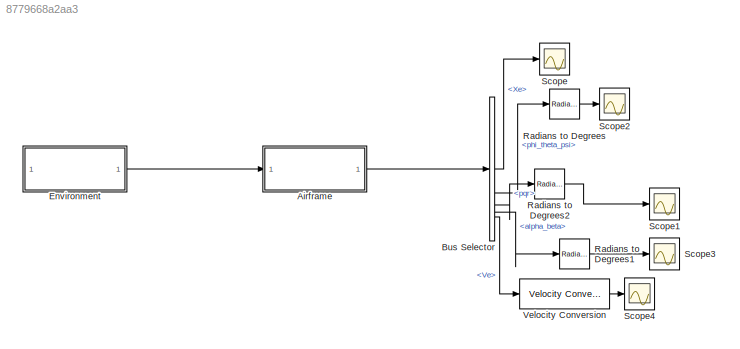
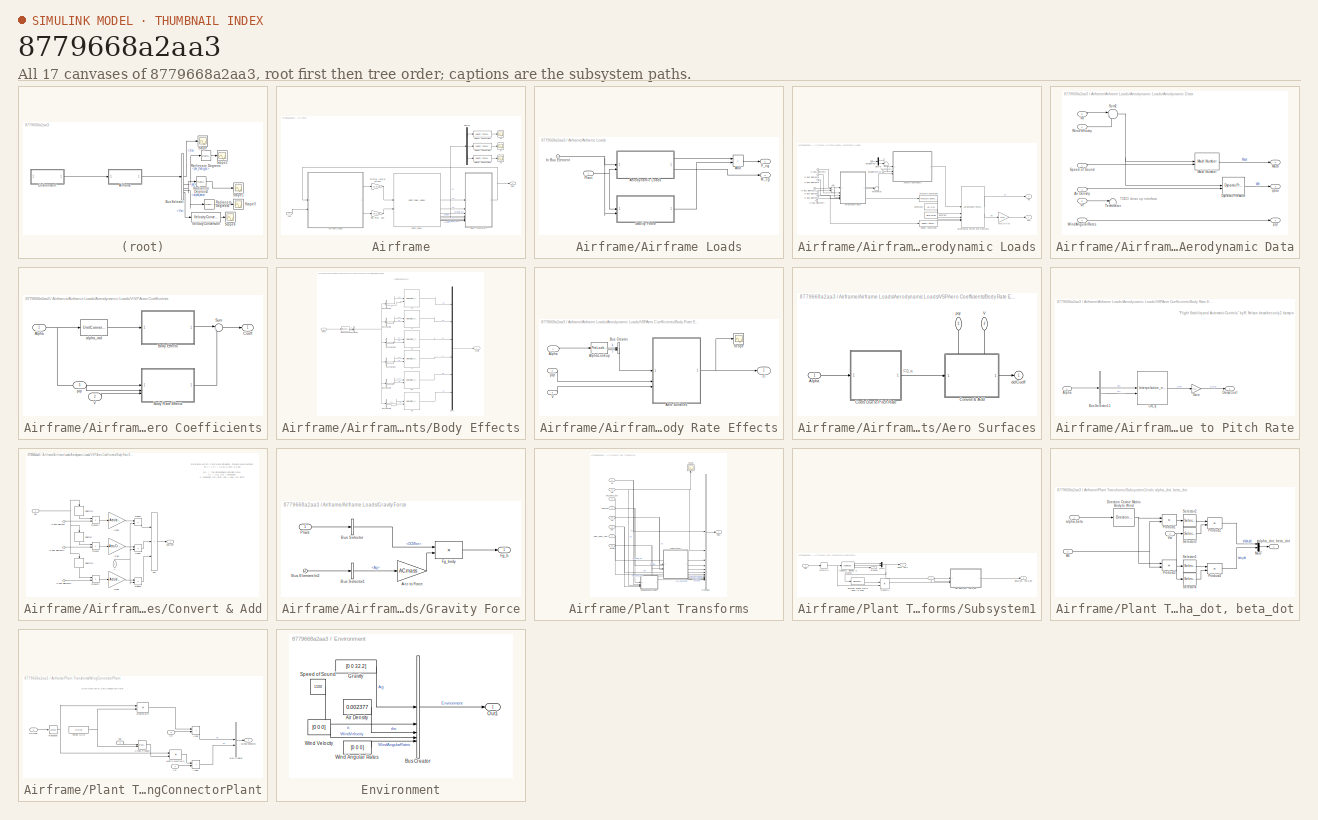
[diagram: thumbnail index - all 17 canvases of the model, root first then tree order]
MODEL slx_8779668a2aa3
KIND model
CONFIG AbsTol = auto
CONFIG EnableMultiTasking = off
CONFIG FixedStep = auto
CONFIG MaxStep = auto
CONFIG MinStep = auto
CONFIG RelTol = 1e-3
CONFIG SampleTimeConstraint = Unconstrained
CONFIG SolverName = VariableStepAuto
CONFIG StartTime = 0.0
CONFIG StopTime = 10
BLOCK [SubSystem] Airframe
BLOCK [Reference] Airframe/6DOF (Euler)  REF=shared6dof/6DOF (Euler Angles)
  LibrarySourceBlock = aerolib6dof2/6DOF (Quaternion)
  SourceBlock = shared6dof/6DOF (Euler Angles)
  SourceType = 6DOF EoM (Body Axis)
BLOCK [SubSystem] Airframe/Airframe Loads
BLOCK [Sum] Airframe/Airframe Loads/Add
  IconShape = rectangular
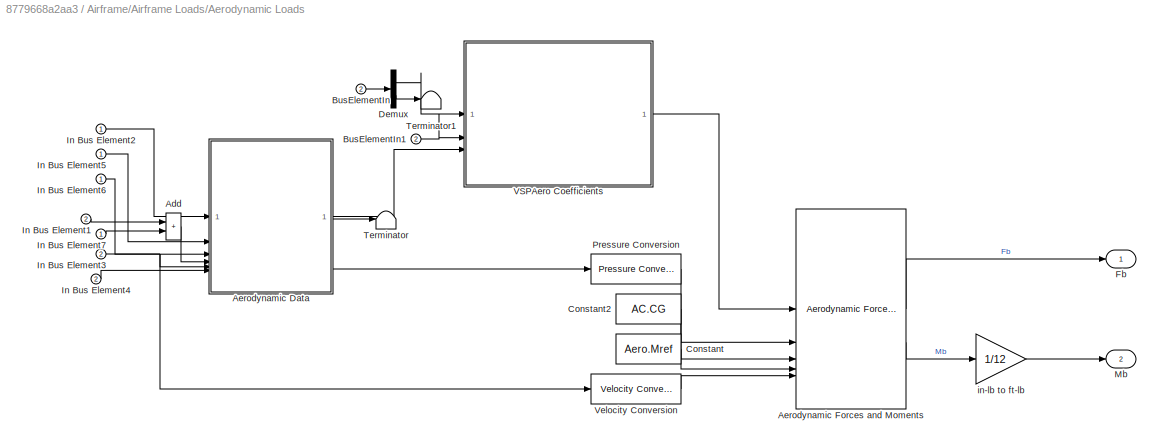
BLOCK [SubSystem] Airframe/Airframe Loads/Aerodynamic Loads
BLOCK [Sum] Airframe/Airframe Loads/Aerodynamic Loads/Add
  IconShape = rectangular
BLOCK [SubSystem] Airframe/Airframe Loads/Aerodynamic Loads/Aerodynamic Data
BLOCK [Inport] Airframe/Airframe Loads/Aerodynamic Loads/Aerodynamic Data/Air Density
  Port = 2
BLOCK [Reference] Airframe/Airframe Loads/Aerodynamic Loads/Aerodynamic Data/Dynamic Pressure  REF=aerolibasang/Dynamic Pressure
  SourceBlock = aerolibasang/Dynamic Pressure
  SourceType = Dynamic Pressure
BLOCK [Outport] Airframe/Airframe Loads/Aerodynamic Loads/Aerodynamic Data/Mach
  Port = 2
  VectorParamsAs1DForOutWhenUnconnected = off
BLOCK [Reference] Airframe/Airframe Loads/Aerodynamic Loads/Aerodynamic Data/Mach Number  REF=aerolibasang/Mach Number
  SourceBlock = aerolibasang/Mach Number
  SourceType = Mach Number
BLOCK [Inport] Airframe/Airframe Loads/Aerodynamic Loads/Aerodynamic Data/Speed of Sound
BLOCK [Sum] Airframe/Airframe Loads/Aerodynamic Loads/Aerodynamic Data/Sum2
  InputSameDT = on
  Inputs = |+-
  OutDataTypeStr = Inherit: Same as first input
  SaturateOnIntegerOverflow = on
BLOCK [Terminator] Airframe/Airframe Loads/Aerodynamic Loads/Aerodynamic Data/Terminator
BLOCK [Inport] Airframe/Airframe Loads/Aerodynamic Loads/Aerodynamic Data/Vb
  Port = 5
  PortDimensions = 3
BLOCK [Inport] Airframe/Airframe Loads/Aerodynamic Loads/Aerodynamic Data/Ve
  Port = 6
  PortDimensions = 3
BLOCK [Inport] Airframe/Airframe Loads/Aerodynamic Loads/Aerodynamic Data/WindAngularRates
  Port = 4
  PortDimensions = 3
BLOCK [Inport] Airframe/Airframe Loads/Aerodynamic Loads/Aerodynamic Data/WindVelocity
  Port = 3
  PortDimensions = 3
BLOCK [Outport] Airframe/Airframe Loads/Aerodynamic Loads/Aerodynamic Data/pqr 
  VectorParamsAs1DForOutWhenUnconnected = off
BLOCK [Outport] Airframe/Airframe Loads/Aerodynamic Loads/Aerodynamic Data/qbar
  Port = 3
  VectorParamsAs1DForOutWhenUnconnected = off
BLOCK [Reference] Airframe/Airframe Loads/Aerodynamic Loads/Aerodynamic Forces and Moments  REF=aerolibadyn/Aerodynamic
Forces and Moments 
  SourceBlock = aerolibadyn/Aerodynamic\nForces and Moments
  SourceType = Aerodynamic Forces and Moments
BLOCK [Inport] Airframe/Airframe Loads/Aerodynamic Loads/BusElementIn
  Port = 2
BLOCK [Inport] Airframe/Airframe Loads/Aerodynamic Loads/BusElementIn1
  Port = 2
BLOCK [Constant] Airframe/Airframe Loads/Aerodynamic Loads/Constant
  Value = Aero.Mref
BLOCK [Constant] Airframe/Airframe Loads/Aerodynamic Loads/Constant2
  Value = AC.CG
BLOCK [Demux] Airframe/Airframe Loads/Aerodynamic Loads/Demux
  Outputs = 2
BLOCK [Outport] Airframe/Airframe Loads/Aerodynamic Loads/Fb
  VectorParamsAs1DForOutWhenUnconnected = off
BLOCK [Inport] Airframe/Airframe Loads/Aerodynamic Loads/In Bus Element1
  Port = 2
BLOCK [Inport] Airframe/Airframe Loads/Aerodynamic Loads/In Bus Element2
BLOCK [Inport] Airframe/Airframe Loads/Aerodynamic Loads/In Bus Element3
  Port = 2
BLOCK [Inport] Airframe/Airframe Loads/Aerodynamic Loads/In Bus Element4
  Port = 2
BLOCK [Inport] Airframe/Airframe Loads/Aerodynamic Loads/In Bus Element5
BLOCK [Inport] Airframe/Airframe Loads/Aerodynamic Loads/In Bus Element6
BLOCK [Inport] Airframe/Airframe Loads/Aerodynamic Loads/In Bus Element7
BLOCK [Outport] Airframe/Airframe Loads/Aerodynamic Loads/Mb
  Port = 2
  VectorParamsAs1DForOutWhenUnconnected = off
BLOCK [Reference] Airframe/Airframe Loads/Aerodynamic Loads/Pressure Conversion  REF=aerolibconvert2/Pressure Conversion
  SourceBlock = aerolibconvert2/Pressure Conversion
  SourceType = Pressure Conversion
BLOCK [Terminator] Airframe/Airframe Loads/Aerodynamic Loads/Terminator
BLOCK [Terminator] Airframe/Airframe Loads/Aerodynamic Loads/Terminator1
BLOCK [SubSystem] Airframe/Airframe Loads/Aerodynamic Loads/VSPAero Coefficients
BLOCK [Inport] Airframe/Airframe Loads/Aerodynamic Loads/VSPAero Coefficients/Alpha
  Unit = rad
BLOCK [SubSystem] Airframe/Airframe Loads/Aerodynamic Loads/VSPAero Coefficients/Body Effects
BLOCK [Inport] Airframe/Airframe Loads/Aerodynamic Loads/VSPAero Coefficients/Body Effects/Alpha
  Unit = deg
BLOCK [PreLookup] Airframe/Airframe Loads/Aerodynamic Loads/VSPAero Coefficients/Body Effects/AlphaLookup
  BeginIndexSearchUsingPreviousIndexResult = on
  BreakpointsData = Aero.alpha_vec
  ExtrapMethod = Linear
  InputPortMap = u0
BLOCK [BusCreator] Airframe/Airframe Loads/Aerodynamic Loads/VSPAero Coefficients/Body Effects/Bus Creator
  DisplayOption = bar
  InheritFromInputs = on
  Inputs = 2
BLOCK [BusSelector] Airframe/Airframe Loads/Aerodynamic Loads/VSPAero Coefficients/Body Effects/Bus Selector10
  OutputSignals = k,f
BLOCK [BusSelector] Airframe/Airframe Loads/Aerodynamic Loads/VSPAero Coefficients/Body Effects/Bus Selector11
  OutputSignals = k,f
BLOCK [BusSelector] Airframe/Airframe Loads/Aerodynamic Loads/VSPAero Coefficients/Body Effects/Bus Selector3
  OutputSignals = k,f
BLOCK [BusSelector] Airframe/Airframe Loads/Aerodynamic Loads/VSPAero Coefficients/Body Effects/Bus Selector5
  OutputSignals = k,f
BLOCK [BusSelector] Airframe/Airframe Loads/Aerodynamic Loads/VSPAero Coefficients/Body Effects/Bus Selector7
  OutputSignals = k,f
BLOCK [BusSelector] Airframe/Airframe Loads/Aerodynamic Loads/VSPAero Coefficients/Body Effects/Bus Selector8
  OutputSignals = k,f
BLOCK [Interpolation_n-D] Airframe/Airframe Loads/Aerodynamic Loads/VSPAero Coefficients/Body Effects/CD
  DiagnosticForOutOfRangeInput = Warning
  InputPortMap = u0,u1
  NumberOfTableDimensions = 1
  RemoveProtectionIndex = on
  SaturateOnIntegerOverflow = on
  Table = Aero.CD
BLOCK [Interpolation_n-D] Airframe/Airframe Loads/Aerodynamic Loads/VSPAero Coefficients/Body Effects/CL
  DiagnosticForOutOfRangeInput = Warning
  ExtrapMethod = Clip
  InputPortMap = u0,u1
  NumberOfTableDimensions = 1
  RemoveProtectionIndex = on
  SaturateOnIntegerOverflow = on
  Table = Aero.CL
BLOCK [Interpolation_n-D] Airframe/Airframe Loads/Aerodynamic Loads/VSPAero Coefficients/Body Effects/Cc
  InputPortMap = u0,u1
  NumberOfTableDimensions = 1
  RemoveProtectionIndex = on
  SaturateOnIntegerOverflow = on
  Table = Aero.Cc
BLOCK [Interpolation_n-D] Airframe/Airframe Loads/Aerodynamic Loads/VSPAero Coefficients/Body Effects/Cl
  InputPortMap = u0,u1
  NumberOfTableDimensions = 1
  RemoveProtectionIndex = on
  SaturateOnIntegerOverflow = on
  Table = Aero.Cl
BLOCK [Interpolation_n-D] Airframe/Airframe Loads/Aerodynamic Loads/VSPAero Coefficients/Body Effects/Cm
  DiagnosticForOutOfRangeInput = Warning
  ExtrapMethod = Clip
  InputPortMap = u0,u1
  NumberOfTableDimensions = 1
  RemoveProtectionIndex = on
  SaturateOnIntegerOverflow = on
  Table = Aero.Cm
BLOCK [Interpolation_n-D] Airframe/Airframe Loads/Aerodynamic Loads/VSPAero Coefficients/Body Effects/Cn
  InputPortMap = u0,u1
  NumberOfTableDimensions = 1
  RemoveProtectionIndex = on
  SaturateOnIntegerOverflow = on
  Table = Aero.Cn
BLOCK [Mux] Airframe/Airframe Loads/Aerodynamic Loads/VSPAero Coefficients/Body Effects/Mux1
  Inputs = 6
BLOCK [Outport] Airframe/Airframe Loads/Aerodynamic Loads/VSPAero Coefficients/Body Effects/coeffs
  VectorParamsAs1DForOutWhenUnconnected = off
BLOCK [SubSystem] Airframe/Airframe Loads/Aerodynamic Loads/VSPAero Coefficients/Body Rate Effects
  Commented = on
BLOCK [SubSystem] Airframe/Airframe Loads/Aerodynamic Loads/VSPAero Coefficients/Body Rate Effects/Aero Surfaces
BLOCK [Inport] Airframe/Airframe Loads/Aerodynamic Loads/VSPAero Coefficients/Body Rate Effects/Aero Surfaces/Alpha
  NameLocation = top
BLOCK [SubSystem] Airframe/Airframe Loads/Aerodynamic Loads/VSPAero Coefficients/Body Rate Effects/Aero Surfaces/Coefs Due to Pitch Rate
BLOCK [Inport] Airframe/Airframe Loads/Aerodynamic Loads/VSPAero Coefficients/Body Rate Effects/Aero Surfaces/Coefs Due to Pitch Rate/Alpha
BLOCK [BusSelector] Airframe/Airframe Loads/Aerodynamic Loads/VSPAero Coefficients/Body Rate Effects/Aero Surfaces/Coefs Due to Pitch Rate/Bus Selector11
  OutputSignals = k,f
BLOCK [Interpolation_n-D] Airframe/Airframe Loads/Aerodynamic Loads/VSPAero Coefficients/Body Rate Effects/Aero Surfaces/Coefs Due to Pitch Rate/Cm_q
  ExtrapMethod = Clip
  InputPortMap = u0,u1
  NumberOfTableDimensions = 1
  RemoveProtectionIndex = on
  SaturateOnIntegerOverflow = on
  Table = Aero.Cm_q
BLOCK [Outport] Airframe/Airframe Loads/Aerodynamic Loads/VSPAero Coefficients/Body Rate Effects/Aero Surfaces/Coefs Due to Pitch Rate/DampCoef
BLOCK [Gain] Airframe/Airframe Loads/Aerodynamic Loads/VSPAero Coefficients/Body Rate Effects/Aero Surfaces/Coefs Due to Pitch Rate/Gain
  Commented = through
  Gain = 0.1
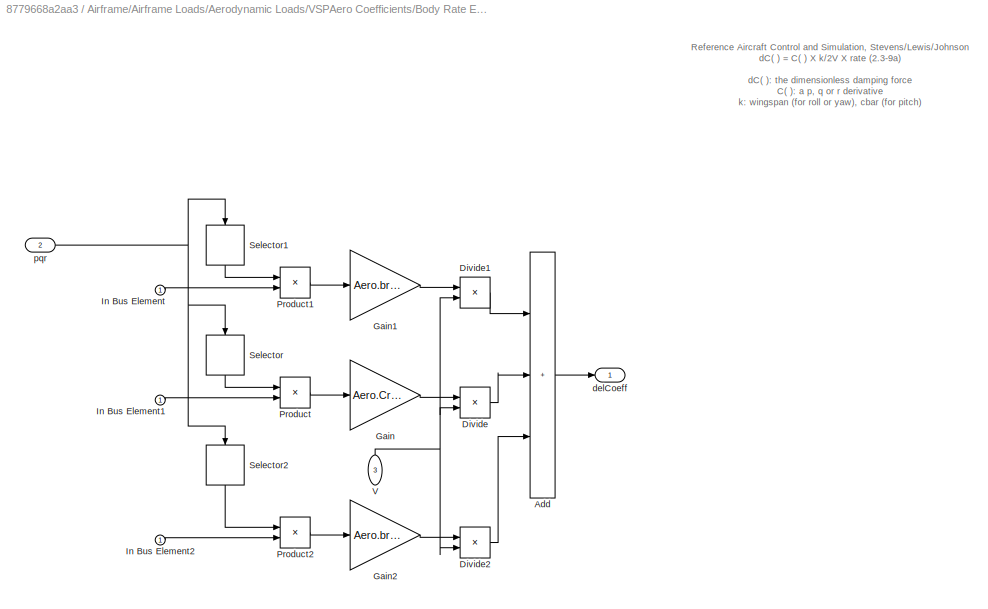
BLOCK [SubSystem] Airframe/Airframe Loads/Aerodynamic Loads/VSPAero Coefficients/Body Rate Effects/Aero Surfaces/Convert & Add
  PortSchema = {"entries":[{"content":{"sides":[{"content":{"connectorIds":["In1"]},"type":"ConnectorPlacement.EquallySpacedRectSide","uuid":"b8013de1-6e73-47c3-a52d-200a37bea422"},{"content":{"connectorIds":["Out1"],"side":"RIGHT"},"type":"ConnectorPlacement.EquallySpacedRectSide","uuid":"fcf5ea14-4050-433a-82d6-0b7656ed6099"},{"content":{"connectorIds":["In2","In3"],"side":"TOP"},"type":"ConnectorPlacement.Equ...<+395ch>
BLOCK [Sum] Airframe/Airframe Loads/Aerodynamic Loads/VSPAero Coefficients/Body Rate Effects/Aero Surfaces/Convert & Add/Add
  IconShape = rectangular
  Inputs = +++
BLOCK [Product] Airframe/Airframe Loads/Aerodynamic Loads/VSPAero Coefficients/Body Rate Effects/Aero Surfaces/Convert & Add/Divide
  Inputs = */
BLOCK [Product] Airframe/Airframe Loads/Aerodynamic Loads/VSPAero Coefficients/Body Rate Effects/Aero Surfaces/Convert & Add/Divide1
  Inputs = */
BLOCK [Product] Airframe/Airframe Loads/Aerodynamic Loads/VSPAero Coefficients/Body Rate Effects/Aero Surfaces/Convert & Add/Divide2
  Inputs = */
BLOCK [Gain] Airframe/Airframe Loads/Aerodynamic Loads/VSPAero Coefficients/Body Rate Effects/Aero Surfaces/Convert & Add/Gain
  Gain = Aero.Cref/2
BLOCK [Gain] Airframe/Airframe Loads/Aerodynamic Loads/VSPAero Coefficients/Body Rate Effects/Aero Surfaces/Convert & Add/Gain1
  Gain = Aero.bref/2
BLOCK [Gain] Airframe/Airframe Loads/Aerodynamic Loads/VSPAero Coefficients/Body Rate Effects/Aero Surfaces/Convert & Add/Gain2
  Gain = Aero.bref/2
BLOCK [Inport] Airframe/Airframe Loads/Aerodynamic Loads/VSPAero Coefficients/Body Rate Effects/Aero Surfaces/Convert & Add/In Bus Element
BLOCK [Inport] Airframe/Airframe Loads/Aerodynamic Loads/VSPAero Coefficients/Body Rate Effects/Aero Surfaces/Convert & Add/In Bus Element1
BLOCK [Inport] Airframe/Airframe Loads/Aerodynamic Loads/VSPAero Coefficients/Body Rate Effects/Aero Surfaces/Convert & Add/In Bus Element2
BLOCK [Product] Airframe/Airframe Loads/Aerodynamic Loads/VSPAero Coefficients/Body Rate Effects/Aero Surfaces/Convert & Add/Product
BLOCK [Product] Airframe/Airframe Loads/Aerodynamic Loads/VSPAero Coefficients/Body Rate Effects/Aero Surfaces/Convert & Add/Product1
BLOCK [Product] Airframe/Airframe Loads/Aerodynamic Loads/VSPAero Coefficients/Body Rate Effects/Aero Surfaces/Convert & Add/Product2
BLOCK [Selector] Airframe/Airframe Loads/Aerodynamic Loads/VSPAero Coefficients/Body Rate Effects/Aero Surfaces/Convert & Add/Selector
  IndexOptions = Index vector (dialog)
  Indices = [ 2]
  InputPortWidth = 3
  NameLocation = left
  OutputSizes = 1
BLOCK [Selector] Airframe/Airframe Loads/Aerodynamic Loads/VSPAero Coefficients/Body Rate Effects/Aero Surfaces/Convert & Add/Selector1
  IndexOptions = Index vector (dialog)
  Indices = [ 1]
  InputPortWidth = 3
  NameLocation = left
  OutputSizes = 1
BLOCK [Selector] Airframe/Airframe Loads/Aerodynamic Loads/VSPAero Coefficients/Body Rate Effects/Aero Surfaces/Convert & Add/Selector2
  IndexOptions = Index vector (dialog)
  Indices = [ 3]
  InputPortWidth = 3
  NameLocation = left
  OutputSizes = 1
BLOCK [Inport] Airframe/Airframe Loads/Aerodynamic Loads/VSPAero Coefficients/Body Rate Effects/Aero Surfaces/Convert & Add/V
  NameLocation = right
  Port = 3
BLOCK [Outport] Airframe/Airframe Loads/Aerodynamic Loads/VSPAero Coefficients/Body Rate Effects/Aero Surfaces/Convert & Add/delCoeff
BLOCK [Inport] Airframe/Airframe Loads/Aerodynamic Loads/VSPAero Coefficients/Body Rate Effects/Aero Surfaces/Convert & Add/pqr
  Port = 2
BLOCK [Inport] Airframe/Airframe Loads/Aerodynamic Loads/VSPAero Coefficients/Body Rate Effects/Aero Surfaces/V
  NameLocation = left
  Port = 3
BLOCK [Outport] Airframe/Airframe Loads/Aerodynamic Loads/VSPAero Coefficients/Body Rate Effects/Aero Surfaces/delCoeff
  VectorParamsAs1DForOutWhenUnconnected = off
BLOCK [Inport] Airframe/Airframe Loads/Aerodynamic Loads/VSPAero Coefficients/Body Rate Effects/Aero Surfaces/pqr
  NameLocation = left
  Port = 2
BLOCK [Inport] Airframe/Airframe Loads/Aerodynamic Loads/VSPAero Coefficients/Body Rate Effects/Alpha
  Unit = deg
BLOCK [PreLookup] Airframe/Airframe Loads/Aerodynamic Loads/VSPAero Coefficients/Body Rate Effects/AlphaLookup
  BeginIndexSearchUsingPreviousIndexResult = on
  BreakpointsData = Aero.alpha_vec
  ExtrapMethod = Linear
  InputPortMap = u0
BLOCK [BusCreator] Airframe/Airframe Loads/Aerodynamic Loads/VSPAero Coefficients/Body Rate Effects/Bus Creator
  DisplayOption = bar
  InheritFromInputs = on
  Inputs = 2
BLOCK [Scope] Airframe/Airframe Loads/Aerodynamic Loads/VSPAero Coefficients/Body Rate Effects/Scope
  Floating = off
  NumInputPorts = 1
  ScopeSpecificationString = Simulink.scopes.TimeScopeBlockCfg('CurrentConfiguration', extmgr.ConfigurationSet(extmgr.Configuration('Core','General UI',true),extmgr.Configuration('Core','Source UI',true),extmgr.Configuration('Sources','WiredSimulink',true,'DataLoggingVariableName','ScopeData4'),extmgr.Configuration('Visuals','Time Domain',true,'SerializedDisplays',{struct('MinYLimReal','-0.12913','MaxYLimReal','0.10005','YLab...<+1517ch>
BLOCK [Inport] Airframe/Airframe Loads/Aerodynamic Loads/VSPAero Coefficients/Body Rate Effects/V
  Port = 3
BLOCK [Outport] Airframe/Airframe Loads/Aerodynamic Loads/VSPAero Coefficients/Body Rate Effects/cl
  VectorParamsAs1DForOutWhenUnconnected = off
BLOCK [Inport] Airframe/Airframe Loads/Aerodynamic Loads/VSPAero Coefficients/Body Rate Effects/pqr
  Port = 2
BLOCK [Outport] Airframe/Airframe Loads/Aerodynamic Loads/VSPAero Coefficients/Coeff
  VectorParamsAs1DForOutWhenUnconnected = off
BLOCK [Sum] Airframe/Airframe Loads/Aerodynamic Loads/VSPAero Coefficients/Sum
  Inputs = |++
BLOCK [Inport] Airframe/Airframe Loads/Aerodynamic Loads/VSPAero Coefficients/V
  Port = 2
BLOCK [UnitConversion] Airframe/Airframe Loads/Aerodynamic Loads/VSPAero Coefficients/alpha_rad
BLOCK [Inport] Airframe/Airframe Loads/Aerodynamic Loads/VSPAero Coefficients/pqr
  Port = 3
BLOCK [Reference] Airframe/Airframe Loads/Aerodynamic Loads/Velocity Conversion  REF=aerolibconvert2/Velocity Conversion
  SourceBlock = aerolibconvert2/Velocity Conversion
  SourceType = Velocity Conversion
BLOCK [Gain] Airframe/Airframe Loads/Aerodynamic Loads/in-lb to ft-lb
  Gain = 1/12
BLOCK [Outport] Airframe/Airframe Loads/F_cg
BLOCK [SubSystem] Airframe/Airframe Loads/Gravity Force
BLOCK [Gain] Airframe/Airframe Loads/Gravity Force/Acc to Force
  Gain = AC.mass
  OutDataTypeStr = Inherit: Same as input
  ParamDataTypeStr = Inherit: Same as input
BLOCK [Inport] Airframe/Airframe Loads/Gravity Force/Bus Element In2
  Port = 2
BLOCK [BusSelector] Airframe/Airframe Loads/Gravity Force/Bus Selector
  OutputSignals = DCMbe
BLOCK [BusSelector] Airframe/Airframe Loads/Gravity Force/Bus Selector1
  OutputSignals = Ag
BLOCK [Outport] Airframe/Airframe Loads/Gravity Force/Fg_b
BLOCK [Product] Airframe/Airframe Loads/Gravity Force/Fg_body
  Multiplication = Matrix(*)
BLOCK [Inport] Airframe/Airframe Loads/Gravity Force/Plant
BLOCK [Inport] Airframe/Airframe Loads/In Bus Element
  Port = 2
BLOCK [Outport] Airframe/Airframe Loads/M_cg
  Port = 2
BLOCK [Inport] Airframe/Airframe Loads/Plant
BLOCK [Demux] Airframe/Demux
  Outputs = 3
BLOCK [Inport] Airframe/In1
BLOCK [Outport] Airframe/Plant
BLOCK [SubSystem] Airframe/Plant Transforms
BLOCK [Inport] Airframe/Plant Transforms/Accels
  Port = 8
BLOCK [Inport] Airframe/Plant Transforms/DCMbe
  Port = 4
BLOCK [BusCreator] Airframe/Plant Transforms/ModelBus
  DisplayOption = bar
  InheritFromInputs = on
  Inputs = 12
BLOCK [Outport] Airframe/Plant Transforms/Plant
BLOCK [Scope] Airframe/Plant Transforms/Scope
  Floating = off
  NameLocation = right
  NumInputPorts = 1
  ScopeSpecificationString = Simulink.scopes.TimeScopeBlockCfg('CurrentConfiguration', extmgr.ConfigurationSet(extmgr.Configuration('Core','General UI',true),extmgr.Configuration('Core','Source UI',true),extmgr.Configuration('Sources','WiredSimulink',true,'DataLoggingVariableName','ScopeData1'),extmgr.Configuration('Visuals','Time Domain',true,'SerializedDisplays',{struct('MinYLimReal','-89.84831','MaxYLimReal','806.16016','Y...<+1476ch>
BLOCK [SubSystem] Airframe/Plant Transforms/Subsystem1
BLOCK [Inport] Airframe/Plant Transforms/Subsystem1/Ab
  Port = 2
BLOCK [Outport] Airframe/Plant Transforms/Subsystem1/Airspeed
  Port = 3
BLOCK [Reference] Airframe/Plant Transforms/Subsystem1/Direction Cosine Matrix Body to Wind  REF=aerolibtransform2/Direction Cosine Matrix
Body to Wind
  SourceBlock = aerolibtransform2/Direction Cosine Matrix\nBody to Wind
  SourceType = DCM Body to Wind
BLOCK [Reference] Airframe/Plant Transforms/Subsystem1/Incidence, Sideslip, & Airspeed  REF=aerolibasang/Incidence, Sideslip,
& Airspeed
  SourceBlock = aerolibasang/Incidence, Sideslip,\n& Airspeed
  SourceType = Incidence,Sideslip,&Airspeed
BLOCK [Memory] Airframe/Plant Transforms/Subsystem1/Memory4
  InitialCondition = initVb
BLOCK [Mux] Airframe/Plant Transforms/Subsystem1/Mux4
  DisplayOption = bar
  Inputs = 2
BLOCK [Product] Airframe/Plant Transforms/Subsystem1/Product1
  InputSameDT = on
  Multiplication = Matrix(*)
  OutDataTypeStr = Inherit: Same as first input
  SaturateOnIntegerOverflow = on
BLOCK [Inport] Airframe/Plant Transforms/Subsystem1/Vb
BLOCK [Outport] Airframe/Plant Transforms/Subsystem1/alpha, beta
  Unit = rad
  VectorParamsAs1DForOutWhenUnconnected = off
BLOCK [Outport] Airframe/Plant Transforms/Subsystem1/alpha_dot, beta_dot
  Port = 2
  Unit = rad/s
  VectorParamsAs1DForOutWhenUnconnected = off
BLOCK [SubSystem] Airframe/Plant Transforms/Subsystem1/calc alpha_dot, beta_dot
BLOCK [Inport] Airframe/Plant Transforms/Subsystem1/calc alpha_dot, beta_dot/Ab
  Port = 2
BLOCK [Reference] Airframe/Plant Transforms/Subsystem1/calc alpha_dot, beta_dot/Direction Cosine Matrix Body to Wind  REF=aerolibtransform2/Direction Cosine Matrix
Body to Wind
  SourceBlock = aerolibtransform2/Direction Cosine Matrix\nBody to Wind
  SourceType = DCM Body to Wind
BLOCK [Mux] Airframe/Plant Transforms/Subsystem1/calc alpha_dot, beta_dot/Mux7
  DisplayOption = bar
  Inputs = 2
BLOCK [Product] Airframe/Plant Transforms/Subsystem1/calc alpha_dot, beta_dot/Product1
  InputSameDT = on
  Multiplication = Matrix(*)
  OutDataTypeStr = Inherit: Same as first input
  SaturateOnIntegerOverflow = on
BLOCK [Product] Airframe/Plant Transforms/Subsystem1/calc alpha_dot, beta_dot/Product2
  InputSameDT = on
  Inputs = */
  OutDataTypeStr = Inherit: Same as first input
  SaturateOnIntegerOverflow = on
BLOCK [Product] Airframe/Plant Transforms/Subsystem1/calc alpha_dot, beta_dot/Product3
  InputSameDT = on
  Multiplication = Matrix(*)
  OutDataTypeStr = Inherit: Same as first input
  SaturateOnIntegerOverflow = on
BLOCK [Product] Airframe/Plant Transforms/Subsystem1/calc alpha_dot, beta_dot/Product4
  InputSameDT = on
  Inputs = */
  OutDataTypeStr = Inherit: Same as first input
  SaturateOnIntegerOverflow = on
BLOCK [Selector] Airframe/Plant Transforms/Subsystem1/calc alpha_dot, beta_dot/Selector1
  IndexMode = Zero-based
  IndexOptions = Index vector (dialog)
  Indices = 1
  InputPortWidth = 3
  OutputSizes = 1
BLOCK [Selector] Airframe/Plant Transforms/Subsystem1/calc alpha_dot, beta_dot/Selector2
  IndexMode = Zero-based
  IndexOptions = Index vector (dialog)
  Indices = 2
  InputPortWidth = 3
  OutputSizes = 1
BLOCK [Selector] Airframe/Plant Transforms/Subsystem1/calc alpha_dot, beta_dot/Selector3
  IndexMode = Zero-based
  IndexOptions = Index vector (dialog)
  Indices = 0
  InputPortWidth = 3
  OutputSizes = 1
BLOCK [Selector] Airframe/Plant Transforms/Subsystem1/calc alpha_dot, beta_dot/Selector4
  IndexMode = Zero-based
  IndexOptions = Index vector (dialog)
  Indices = 0
  InputPortWidth = 3
  OutputSizes = 1
BLOCK [Inport] Airframe/Plant Transforms/Subsystem1/calc alpha_dot, beta_dot/Vw
  Port = 3
BLOCK [Inport] Airframe/Plant Transforms/Subsystem1/calc alpha_dot, beta_dot/alpha,beta
BLOCK [Outport] Airframe/Plant Transforms/Subsystem1/calc alpha_dot, beta_dot/alpha_dot, beta_dot
  VectorParamsAs1DForOutWhenUnconnected = off
BLOCK [Inport] Airframe/Plant Transforms/Vb
  Port = 5
BLOCK [Inport] Airframe/Plant Transforms/Ve
BLOCK [SubSystem] Airframe/Plant Transforms/WingConnectorPlant
BLOCK [Sum] Airframe/Plant Transforms/WingConnectorPlant/Add1
  IconShape = rectangular
BLOCK [Sum] Airframe/Plant Transforms/WingConnectorPlant/Add2
  IconShape = rectangular
BLOCK [Product] Airframe/Plant Transforms/WingConnectorPlant/Body2Earth
  Multiplication = Matrix(*)
BLOCK [BusCreator] Airframe/Plant Transforms/WingConnectorPlant/Bus Creator
  DisplayOption = bar
  InheritFromInputs = on
  Inputs = 2
BLOCK [Reference] Airframe/Plant Transforms/WingConnectorPlant/Cross Product  REF=vrlib/Utilities/Cross Product
  SourceBlock = vrlib/Utilities/Cross Product
  SourceType = Cross Product
BLOCK [Inport] Airframe/Plant Transforms/WingConnectorPlant/DCMbe
BLOCK [Product] Airframe/Plant Transforms/WingConnectorPlant/Matrix Multiply1
  Multiplication = Matrix(*)
BLOCK [Constant] Airframe/Plant Transforms/WingConnectorPlant/Tether DCG
  Value = [0 0 0]
BLOCK [Math] Airframe/Plant Transforms/WingConnectorPlant/Transpose
  Operator = transpose
BLOCK [Inport] Airframe/Plant Transforms/WingConnectorPlant/Ve
  Port = 2
BLOCK [Outport] Airframe/Plant Transforms/WingConnectorPlant/WingConnector
BLOCK [Inport] Airframe/Plant Transforms/WingConnectorPlant/Xe
  Port = 3
BLOCK [Inport] Airframe/Plant Transforms/WingConnectorPlant/pqr
  Port = 4
BLOCK [Inport] Airframe/Plant Transforms/Xe
  Port = 2
BLOCK [Inport] Airframe/Plant Transforms/pdot_qdot_rdot
  Port = 7
BLOCK [Inport] Airframe/Plant Transforms/phi_theta_psi
  Port = 3
BLOCK [Inport] Airframe/Plant Transforms/pqr
  Port = 6
BLOCK [Gain] Airframe/Roll, Pitch, Yaw
  Gain = [0 1 0]
BLOCK [Gain] Airframe/Throttle, Lateral, Vertical
  Gain = [1 0 1]
BLOCK [Reference] Airframe/Velocity Conversion  REF=aerolibconvert2/Velocity Conversion
  SourceBlock = aerolibconvert2/Velocity Conversion
  SourceType = Velocity Conversion
BLOCK [Reference] Airframe/Velocity Conversion1  REF=aerolibconvert2/Velocity Conversion
  SourceBlock = aerolibconvert2/Velocity Conversion
  SourceType = Velocity Conversion
BLOCK [Reference] Airframe/Velocity Conversion2  REF=aerolibconvert2/Velocity Conversion
  SourceBlock = aerolibconvert2/Velocity Conversion
  SourceType = Velocity Conversion
BLOCK [Scope] Airframe/Vx
  Floating = off
  NumInputPorts = 1
  ScopeSpecificationString = Simulink.scopes.TimeScopeBlockCfg('CurrentConfiguration', extmgr.ConfigurationSet(extmgr.Configuration('Core','General UI',true),extmgr.Configuration('Core','Source UI',true),extmgr.Configuration('Sources','WiredSimulink',true,'DataLoggingVariableName','ScopeData1'),extmgr.Configuration('Visuals','Time Domain',true,'SerializedDisplays',{struct('MinYLimReal','65.83997','MaxYLimReal','95.33531','YLa...<+1502ch>
BLOCK [Scope] Airframe/Vy
  Floating = off
  NumInputPorts = 1
  ScopeSpecificationString = Simulink.scopes.TimeScopeBlockCfg('CurrentConfiguration', extmgr.ConfigurationSet(extmgr.Configuration('Core','General UI',true),extmgr.Configuration('Core','Source UI',true),extmgr.Configuration('Sources','WiredSimulink',true,'DataLoggingVariableName','ScopeData2'),extmgr.Configuration('Visuals','Time Domain',true,'SerializedDisplays',{struct('MinYLimReal','-1.00000','MaxYLimReal','1.00000','YLab...<+1496ch>
BLOCK [Scope] Airframe/Vz
  Floating = off
  NumInputPorts = 1
  ScopeSpecificationString = Simulink.scopes.TimeScopeBlockCfg('CurrentConfiguration', extmgr.ConfigurationSet(extmgr.Configuration('Core','General UI',true),extmgr.Configuration('Core','Source UI',true),extmgr.Configuration('Sources','WiredSimulink',true,'DataLoggingVariableName','ScopeData3'),extmgr.Configuration('Visuals','Time Domain',true,'SerializedDisplays',{struct('MinYLimReal','-40.40382','MaxYLimReal','23.85273','YL...<+1502ch>
BLOCK [BusSelector] Bus Selector
  OutputSignals = Xe,phi_theta_psi,pqr,alpha_beta,Ve
BLOCK [SubSystem] Environment
BLOCK [Constant] Environment/Air Density
  Value = 0.002377
BLOCK [BusCreator] Environment/Bus Creator
  DisplayOption = bar
  InheritFromInputs = on
  Inputs = 5
BLOCK [Constant] Environment/Gravity
  Value = [0 0 32.2]
BLOCK [Outport] Environment/Out1
BLOCK [Constant] Environment/Speed of Sound
  Value = 1100
BLOCK [Constant] Environment/Wind Angular Rates
  Value = [0 0 0]
BLOCK [Constant] Environment/Wind Velocity
  Value = [0 0 0]
BLOCK [Reference] Radians to Degrees  REF=simulink_extras/Transformations/Radians
to Degrees
  SourceBlock = simulink_extras/Transformations/Radians\nto Degrees
  SourceType = RadiansToDegrees
BLOCK [Reference] Radians to Degrees1  REF=simulink_extras/Transformations/Radians
to Degrees
  SourceBlock = simulink_extras/Transformations/Radians\nto Degrees
  SourceType = RadiansToDegrees
BLOCK [Reference] Radians to Degrees2  REF=simulink_extras/Transformations/Radians
to Degrees
  NameLocation = right
  SourceBlock = simulink_extras/Transformations/Radians\nto Degrees
  SourceType = RadiansToDegrees
BLOCK [Scope] Scope
  Floating = off
  NumInputPorts = 1
  ScopeSpecificationString = Simulink.scopes.TimeScopeBlockCfg('CurrentConfiguration', extmgr.ConfigurationSet(extmgr.Configuration('Core','General UI',true),extmgr.Configuration('Core','Source UI',true),extmgr.Configuration('Sources','WiredSimulink',true),extmgr.Configuration('Visuals','Time Domain',true,'SerializedDisplays',{struct('MinYLimReal','-128.56792','MaxYLimReal','1143.10212','YLabelReal','','MinYLimMag',' 0.00000'...<+1478ch>
BLOCK [Scope] Scope1
  Floating = off
  NumInputPorts = 1
  ScopeSpecificationString = Simulink.scopes.TimeScopeBlockCfg('CurrentConfiguration', extmgr.ConfigurationSet(extmgr.Configuration('Core','General UI',true),extmgr.Configuration('Core','Source UI',true),extmgr.Configuration('Sources','WiredSimulink',true,'DataLoggingVariableName','ScopeData4'),extmgr.Configuration('Visuals','Time Domain',true,'SerializedDisplays',{struct('MinYLimReal','-12.26263','MaxYLimReal','3.11966','YLa...<+1574ch>
BLOCK [Scope] Scope2
  Floating = off
  NumInputPorts = 1
  ScopeSpecificationString = Simulink.scopes.TimeScopeBlockCfg('CurrentConfiguration', extmgr.ConfigurationSet(extmgr.Configuration('Core','General UI',true),extmgr.Configuration('Core','Source UI',true),extmgr.Configuration('Sources','WiredSimulink',true,'DataLoggingVariableName','ScopeData5'),extmgr.Configuration('Visuals','Time Domain',true,'SerializedDisplays',{struct('MinYLimReal','-50.20059','MaxYLimReal','5.57784','YLa...<+1544ch>
BLOCK [Scope] Scope3
  Floating = off
  NumInputPorts = 1
  ScopeSpecificationString = Simulink.scopes.TimeScopeBlockCfg('CurrentConfiguration', extmgr.ConfigurationSet(extmgr.Configuration('Core','General UI',true),extmgr.Configuration('Core','Source UI',true),extmgr.Configuration('Sources','WiredSimulink',true,'DataLoggingVariableName','ScopeData6'),extmgr.Configuration('Visuals','Time Domain',true,'SerializedDisplays',{struct('MinYLimReal','-27.78751','MaxYLimReal','15.45351','YL...<+1526ch>
BLOCK [Scope] Scope4
  Floating = off
  NumInputPorts = 1
  ScopeSpecificationString = Simulink.scopes.TimeScopeBlockCfg('CurrentConfiguration', extmgr.ConfigurationSet(extmgr.Configuration('Core','General UI',true),extmgr.Configuration('Core','Source UI',true),extmgr.Configuration('Sources','WiredSimulink',true,'DataLoggingVariableName','ScopeData7'),extmgr.Configuration('Visuals','Time Domain',true,'SerializedDisplays',{struct('MinYLimReal','-12.93247','MaxYLimReal','94.91922','YL...<+1550ch>
BLOCK [Reference] Velocity Conversion  REF=aerolibconvert2/Velocity Conversion
  SourceBlock = aerolibconvert2/Velocity Conversion
  SourceType = Velocity Conversion
ANNOTATION Airframe/Airframe Loads/Aerodynamic Loads/Aerodynamic Data: TODO: clean up interface
ANNOTATION Airframe/Airframe Loads/Aerodynamic Loads/VSPAero Coefficients/Body Effects: coefficients in wind axes
ANNOTATION Airframe/Airframe Loads/Aerodynamic Loads/VSPAero Coefficients/Body Rate Effects/Aero Surfaces: C()_q
ANNOTATION Airframe/Airframe Loads/Aerodynamic Loads/VSPAero Coefficients/Body Rate Effects/Aero Surfaces/Coefs Due to Pitch Rate: "Flight Stability and Automatic Controls," by R. Nelson describes only 2 damping coefficients due to pitch rate. (Pg. 123): Z force, pitching moment
ANNOTATION Airframe/Airframe Loads/Aerodynamic Loads/VSPAero Coefficients/Body Rate Effects/Aero Surfaces/Convert & Add: Reference Aircraft Control and Simulation, Stevens/Lewis/Johnson dC( ) = C( ) X k/2V X rate (2.3-9a) dC( ): the dimensionless damping force C( ): a p, q or r derivative k: wingspan (for roll or yaw), cbar (for pitch)
ANNOTATION Airframe/Plant Transforms/WingConnectorPlant: Give Position of Line Connection Point
LINE Airframe/6DOF (Euler):1 -> Airframe/Plant Transforms:1
LINE Airframe/6DOF (Euler):2 -> Airframe/Plant Transforms:2
LINE Airframe/6DOF (Euler):3 -> Airframe/Plant Transforms:3
LINE Airframe/6DOF (Euler):4 -> Airframe/Plant Transforms:4
NET Airframe/6DOF (Euler):5 -> Airframe/Demux:1, Airframe/Plant Transforms:5
LINE Airframe/6DOF (Euler):6 -> Airframe/Plant Transforms:6
LINE Airframe/6DOF (Euler):7 -> Airframe/Plant Transforms:7
LINE Airframe/6DOF (Euler):8 -> Airframe/Plant Transforms:8
LINE Airframe/Airframe Loads/Add:1 -> Airframe/Airframe Loads/F_cg:1
LINE Airframe/Airframe Loads/Aerodynamic Loads/Add:1 -> Airframe/Airframe Loads/Aerodynamic Loads/Aerodynamic Data:4
LINE Airframe/Airframe Loads/Aerodynamic Loads/Aerodynamic Data/Air Density:1 -> Airframe/Airframe Loads/Aerodynamic Loads/Aerodynamic Data/Dynamic Pressure:2
LINE Airframe/Airframe Loads/Aerodynamic Loads/Aerodynamic Data/Dynamic Pressure:1 -> Airframe/Airframe Loads/Aerodynamic Loads/Aerodynamic Data/qbar:1
LINE Airframe/Airframe Loads/Aerodynamic Loads/Aerodynamic Data/Mach Number:1 -> Airframe/Airframe Loads/Aerodynamic Loads/Aerodynamic Data/Mach:1
LINE Airframe/Airframe Loads/Aerodynamic Loads/Aerodynamic Data/Speed of Sound:1 -> Airframe/Airframe Loads/Aerodynamic Loads/Aerodynamic Data/Mach Number:2
NET Airframe/Airframe Loads/Aerodynamic Loads/Aerodynamic Data/Sum2:1 -> Airframe/Airframe Loads/Aerodynamic Loads/Aerodynamic Data/Dynamic Pressure:1, Airframe/Airframe Loads/Aerodynamic Loads/Aerodynamic Data/Mach Number:1
LINE Airframe/Airframe Loads/Aerodynamic Loads/Aerodynamic Data/Vb:1 -> Airframe/Airframe Loads/Aerodynamic Loads/Aerodynamic Data/Sum2:1
LINE Airframe/Airframe Loads/Aerodynamic Loads/Aerodynamic Data/Ve:1 -> Airframe/Airframe Loads/Aerodynamic Loads/Aerodynamic Data/Terminator:1
LINE Airframe/Airframe Loads/Aerodynamic Loads/Aerodynamic Data/WindAngularRates:1 -> Airframe/Airframe Loads/Aerodynamic Loads/Aerodynamic Data/pqr :1
LINE Airframe/Airframe Loads/Aerodynamic Loads/Aerodynamic Data/WindVelocity:1 -> Airframe/Airframe Loads/Aerodynamic Loads/Aerodynamic Data/Sum2:2
LINE Airframe/Airframe Loads/Aerodynamic Loads/Aerodynamic Data:1 -> Airframe/Airframe Loads/Aerodynamic Loads/VSPAero Coefficients:3
LINE Airframe/Airframe Loads/Aerodynamic Loads/Aerodynamic Data:2 -> Airframe/Airframe Loads/Aerodynamic Loads/Terminator:1
LINE Airframe/Airframe Loads/Aerodynamic Loads/Aerodynamic Data:3 -> Airframe/Airframe Loads/Aerodynamic Loads/Pressure Conversion:1
LINE Airframe/Airframe Loads/Aerodynamic Loads/Aerodynamic Forces and Moments:1 -> Airframe/Airframe Loads/Aerodynamic Loads/Fb:1
LINE Airframe/Airframe Loads/Aerodynamic Loads/Aerodynamic Forces and Moments:2 -> Airframe/Airframe Loads/Aerodynamic Loads/in-lb to ft-lb:1
LINE Airframe/Airframe Loads/Aerodynamic Loads/BusElementIn1:1 -> Airframe/Airframe Loads/Aerodynamic Loads/VSPAero Coefficients:2
LINE Airframe/Airframe Loads/Aerodynamic Loads/BusElementIn:1 -> Airframe/Airframe Loads/Aerodynamic Loads/Demux:1
LINE Airframe/Airframe Loads/Aerodynamic Loads/Constant2:1 -> Airframe/Airframe Loads/Aerodynamic Loads/Aerodynamic Forces and Moments:3
LINE Airframe/Airframe Loads/Aerodynamic Loads/Constant:1 -> Airframe/Airframe Loads/Aerodynamic Loads/Aerodynamic Forces and Moments:4
LINE Airframe/Airframe Loads/Aerodynamic Loads/Demux:1 -> Airframe/Airframe Loads/Aerodynamic Loads/VSPAero Coefficients:1
LINE Airframe/Airframe Loads/Aerodynamic Loads/Demux:2 -> Airframe/Airframe Loads/Aerodynamic Loads/Terminator1:1
LINE Airframe/Airframe Loads/Aerodynamic Loads/In Bus Element1:1 -> Airframe/Airframe Loads/Aerodynamic Loads/Add:1
LINE Airframe/Airframe Loads/Aerodynamic Loads/In Bus Element2:1 -> Airframe/Airframe Loads/Aerodynamic Loads/Aerodynamic Data:1
NET Airframe/Airframe Loads/Aerodynamic Loads/In Bus Element3:1 -> Airframe/Airframe Loads/Aerodynamic Loads/Aerodynamic Data:5, Airframe/Airframe Loads/Aerodynamic Loads/Velocity Conversion:1
LINE Airframe/Airframe Loads/Aerodynamic Loads/In Bus Element4:1 -> Airframe/Airframe Loads/Aerodynamic Loads/Aerodynamic Data:6
LINE Airframe/Airframe Loads/Aerodynamic Loads/In Bus Element5:1 -> Airframe/Airframe Loads/Aerodynamic Loads/Aerodynamic Data:2
LINE Airframe/Airframe Loads/Aerodynamic Loads/In Bus Element6:1 -> Airframe/Airframe Loads/Aerodynamic Loads/Aerodynamic Data:3
LINE Airframe/Airframe Loads/Aerodynamic Loads/In Bus Element7:1 -> Airframe/Airframe Loads/Aerodynamic Loads/Add:2
LINE Airframe/Airframe Loads/Aerodynamic Loads/Pressure Conversion:1 -> Airframe/Airframe Loads/Aerodynamic Loads/Aerodynamic Forces and Moments:2
NET Airframe/Airframe Loads/Aerodynamic Loads/VSPAero Coefficients/Alpha:1 -> Airframe/Airframe Loads/Aerodynamic Loads/VSPAero Coefficients/Body Rate Effects:1, Airframe/Airframe Loads/Aerodynamic Loads/VSPAero Coefficients/alpha_rad:1
LINE Airframe/Airframe Loads/Aerodynamic Loads/VSPAero Coefficients/Body Effects/Alpha:1 -> Airframe/Airframe Loads/Aerodynamic Loads/VSPAero Coefficients/Body Effects/AlphaLookup:1
LINE Airframe/Airframe Loads/Aerodynamic Loads/VSPAero Coefficients/Body Effects/AlphaLookup:1 -> Airframe/Airframe Loads/Aerodynamic Loads/VSPAero Coefficients/Body Effects/Bus Creator:1
LINE Airframe/Airframe Loads/Aerodynamic Loads/VSPAero Coefficients/Body Effects/AlphaLookup:2 -> Airframe/Airframe Loads/Aerodynamic Loads/VSPAero Coefficients/Body Effects/Bus Creator:2
NET Airframe/Airframe Loads/Aerodynamic Loads/VSPAero Coefficients/Body Effects/Bus Creator:1 -> Airframe/Airframe Loads/Aerodynamic Loads/VSPAero Coefficients/Body Effects/Bus Selector10:1, Airframe/Airframe Loads/Aerodynamic Loads/VSPAero Coefficients/Body Effects/Bus Selector11:1, Airframe/Airframe Loads/Aerodynamic Loads/VSPAero Coefficients/Body Effects/Bus Selector3:1, Airframe/Airframe Loads/Aerodynamic Loads/VSPAero Coefficients/Body Effects/Bus Selector5:1, Airframe/Airframe Loads/Aerodynamic Loads/VSPAero Coefficients/Body Effects/Bus Selector7:1, Airframe/Airframe Loads/Aerodynamic Loads/VSPAero Coefficients/Body Effects/Bus Selector8:1
LINE Airframe/Airframe Loads/Aerodynamic Loads/VSPAero Coefficients/Body Effects/Bus Selector10:1 -> Airframe/Airframe Loads/Aerodynamic Loads/VSPAero Coefficients/Body Effects/CL:1
LINE Airframe/Airframe Loads/Aerodynamic Loads/VSPAero Coefficients/Body Effects/Bus Selector10:2 -> Airframe/Airframe Loads/Aerodynamic Loads/VSPAero Coefficients/Body Effects/CL:2
LINE Airframe/Airframe Loads/Aerodynamic Loads/VSPAero Coefficients/Body Effects/Bus Selector11:1 -> Airframe/Airframe Loads/Aerodynamic Loads/VSPAero Coefficients/Body Effects/Cl:1
LINE Airframe/Airframe Loads/Aerodynamic Loads/VSPAero Coefficients/Body Effects/Bus Selector11:2 -> Airframe/Airframe Loads/Aerodynamic Loads/VSPAero Coefficients/Body Effects/Cl:2
LINE Airframe/Airframe Loads/Aerodynamic Loads/VSPAero Coefficients/Body Effects/Bus Selector3:1 -> Airframe/Airframe Loads/Aerodynamic Loads/VSPAero Coefficients/Body Effects/Cm:1
LINE Airframe/Airframe Loads/Aerodynamic Loads/VSPAero Coefficients/Body Effects/Bus Selector3:2 -> Airframe/Airframe Loads/Aerodynamic Loads/VSPAero Coefficients/Body Effects/Cm:2
LINE Airframe/Airframe Loads/Aerodynamic Loads/VSPAero Coefficients/Body Effects/Bus Selector5:1 -> Airframe/Airframe Loads/Aerodynamic Loads/VSPAero Coefficients/Body Effects/Cn:1
LINE Airframe/Airframe Loads/Aerodynamic Loads/VSPAero Coefficients/Body Effects/Bus Selector5:2 -> Airframe/Airframe Loads/Aerodynamic Loads/VSPAero Coefficients/Body Effects/Cn:2
LINE Airframe/Airframe Loads/Aerodynamic Loads/VSPAero Coefficients/Body Effects/Bus Selector7:1 -> Airframe/Airframe Loads/Aerodynamic Loads/VSPAero Coefficients/Body Effects/CD:1
LINE Airframe/Airframe Loads/Aerodynamic Loads/VSPAero Coefficients/Body Effects/Bus Selector7:2 -> Airframe/Airframe Loads/Aerodynamic Loads/VSPAero Coefficients/Body Effects/CD:2
LINE Airframe/Airframe Loads/Aerodynamic Loads/VSPAero Coefficients/Body Effects/Bus Selector8:1 -> Airframe/Airframe Loads/Aerodynamic Loads/VSPAero Coefficients/Body Effects/Cc:1
LINE Airframe/Airframe Loads/Aerodynamic Loads/VSPAero Coefficients/Body Effects/Bus Selector8:2 -> Airframe/Airframe Loads/Aerodynamic Loads/VSPAero Coefficients/Body Effects/Cc:2
LINE Airframe/Airframe Loads/Aerodynamic Loads/VSPAero Coefficients/Body Effects/CD:1 -> Airframe/Airframe Loads/Aerodynamic Loads/VSPAero Coefficients/Body Effects/Mux1:1
LINE Airframe/Airframe Loads/Aerodynamic Loads/VSPAero Coefficients/Body Effects/CL:1 -> Airframe/Airframe Loads/Aerodynamic Loads/VSPAero Coefficients/Body Effects/Mux1:3
LINE Airframe/Airframe Loads/Aerodynamic Loads/VSPAero Coefficients/Body Effects/Cc:1 -> Airframe/Airframe Loads/Aerodynamic Loads/VSPAero Coefficients/Body Effects/Mux1:2
LINE Airframe/Airframe Loads/Aerodynamic Loads/VSPAero Coefficients/Body Effects/Cl:1 -> Airframe/Airframe Loads/Aerodynamic Loads/VSPAero Coefficients/Body Effects/Mux1:4
LINE Airframe/Airframe Loads/Aerodynamic Loads/VSPAero Coefficients/Body Effects/Cm:1 -> Airframe/Airframe Loads/Aerodynamic Loads/VSPAero Coefficients/Body Effects/Mux1:5
LINE Airframe/Airframe Loads/Aerodynamic Loads/VSPAero Coefficients/Body Effects/Cn:1 -> Airframe/Airframe Loads/Aerodynamic Loads/VSPAero Coefficients/Body Effects/Mux1:6
LINE Airframe/Airframe Loads/Aerodynamic Loads/VSPAero Coefficients/Body Effects/Mux1:1 -> Airframe/Airframe Loads/Aerodynamic Loads/VSPAero Coefficients/Body Effects/coeffs:1
LINE Airframe/Airframe Loads/Aerodynamic Loads/VSPAero Coefficients/Body Effects:1 -> Airframe/Airframe Loads/Aerodynamic Loads/VSPAero Coefficients/Sum:1
LINE Airframe/Airframe Loads/Aerodynamic Loads/VSPAero Coefficients/Body Rate Effects/Aero Surfaces/Alpha:1 -> Airframe/Airframe Loads/Aerodynamic Loads/VSPAero Coefficients/Body Rate Effects/Aero Surfaces/Coefs Due to Pitch Rate:1
LINE Airframe/Airframe Loads/Aerodynamic Loads/VSPAero Coefficients/Body Rate Effects/Aero Surfaces/Coefs Due to Pitch Rate/Alpha:1 -> Airframe/Airframe Loads/Aerodynamic Loads/VSPAero Coefficients/Body Rate Effects/Aero Surfaces/Coefs Due to Pitch Rate/Bus Selector11:1
LINE Airframe/Airframe Loads/Aerodynamic Loads/VSPAero Coefficients/Body Rate Effects/Aero Surfaces/Coefs Due to Pitch Rate/Bus Selector11:1 -> Airframe/Airframe Loads/Aerodynamic Loads/VSPAero Coefficients/Body Rate Effects/Aero Surfaces/Coefs Due to Pitch Rate/Cm_q:1
LINE Airframe/Airframe Loads/Aerodynamic Loads/VSPAero Coefficients/Body Rate Effects/Aero Surfaces/Coefs Due to Pitch Rate/Bus Selector11:2 -> Airframe/Airframe Loads/Aerodynamic Loads/VSPAero Coefficients/Body Rate Effects/Aero Surfaces/Coefs Due to Pitch Rate/Cm_q:2
LINE Airframe/Airframe Loads/Aerodynamic Loads/VSPAero Coefficients/Body Rate Effects/Aero Surfaces/Coefs Due to Pitch Rate/Cm_q:1 -> Airframe/Airframe Loads/Aerodynamic Loads/VSPAero Coefficients/Body Rate Effects/Aero Surfaces/Coefs Due to Pitch Rate/Gain:1
LINE Airframe/Airframe Loads/Aerodynamic Loads/VSPAero Coefficients/Body Rate Effects/Aero Surfaces/Coefs Due to Pitch Rate/Gain:1 -> Airframe/Airframe Loads/Aerodynamic Loads/VSPAero Coefficients/Body Rate Effects/Aero Surfaces/Coefs Due to Pitch Rate/DampCoef:1
LINE Airframe/Airframe Loads/Aerodynamic Loads/VSPAero Coefficients/Body Rate Effects/Aero Surfaces/Coefs Due to Pitch Rate:1 -> Airframe/Airframe Loads/Aerodynamic Loads/VSPAero Coefficients/Body Rate Effects/Aero Surfaces/Convert & Add:1
LINE Airframe/Airframe Loads/Aerodynamic Loads/VSPAero Coefficients/Body Rate Effects/Aero Surfaces/Convert & Add/Add:1 -> Airframe/Airframe Loads/Aerodynamic Loads/VSPAero Coefficients/Body Rate Effects/Aero Surfaces/Convert & Add/delCoeff:1
LINE Airframe/Airframe Loads/Aerodynamic Loads/VSPAero Coefficients/Body Rate Effects/Aero Surfaces/Convert & Add/Divide1:1 -> Airframe/Airframe Loads/Aerodynamic Loads/VSPAero Coefficients/Body Rate Effects/Aero Surfaces/Convert & Add/Add:1
LINE Airframe/Airframe Loads/Aerodynamic Loads/VSPAero Coefficients/Body Rate Effects/Aero Surfaces/Convert & Add/Divide2:1 -> Airframe/Airframe Loads/Aerodynamic Loads/VSPAero Coefficients/Body Rate Effects/Aero Surfaces/Convert & Add/Add:3
LINE Airframe/Airframe Loads/Aerodynamic Loads/VSPAero Coefficients/Body Rate Effects/Aero Surfaces/Convert & Add/Divide:1 -> Airframe/Airframe Loads/Aerodynamic Loads/VSPAero Coefficients/Body Rate Effects/Aero Surfaces/Convert & Add/Add:2
LINE Airframe/Airframe Loads/Aerodynamic Loads/VSPAero Coefficients/Body Rate Effects/Aero Surfaces/Convert & Add/Gain1:1 -> Airframe/Airframe Loads/Aerodynamic Loads/VSPAero Coefficients/Body Rate Effects/Aero Surfaces/Convert & Add/Divide1:1
LINE Airframe/Airframe Loads/Aerodynamic Loads/VSPAero Coefficients/Body Rate Effects/Aero Surfaces/Convert & Add/Gain2:1 -> Airframe/Airframe Loads/Aerodynamic Loads/VSPAero Coefficients/Body Rate Effects/Aero Surfaces/Convert & Add/Divide2:1
LINE Airframe/Airframe Loads/Aerodynamic Loads/VSPAero Coefficients/Body Rate Effects/Aero Surfaces/Convert & Add/Gain:1 -> Airframe/Airframe Loads/Aerodynamic Loads/VSPAero Coefficients/Body Rate Effects/Aero Surfaces/Convert & Add/Divide:1
LINE Airframe/Airframe Loads/Aerodynamic Loads/VSPAero Coefficients/Body Rate Effects/Aero Surfaces/Convert & Add/In Bus Element1:1 -> Airframe/Airframe Loads/Aerodynamic Loads/VSPAero Coefficients/Body Rate Effects/Aero Surfaces/Convert & Add/Product:2
LINE Airframe/Airframe Loads/Aerodynamic Loads/VSPAero Coefficients/Body Rate Effects/Aero Surfaces/Convert & Add/In Bus Element2:1 -> Airframe/Airframe Loads/Aerodynamic Loads/VSPAero Coefficients/Body Rate Effects/Aero Surfaces/Convert & Add/Product2:2
LINE Airframe/Airframe Loads/Aerodynamic Loads/VSPAero Coefficients/Body Rate Effects/Aero Surfaces/Convert & Add/In Bus Element:1 -> Airframe/Airframe Loads/Aerodynamic Loads/VSPAero Coefficients/Body Rate Effects/Aero Surfaces/Convert & Add/Product1:2
LINE Airframe/Airframe Loads/Aerodynamic Loads/VSPAero Coefficients/Body Rate Effects/Aero Surfaces/Convert & Add/Product1:1 -> Airframe/Airframe Loads/Aerodynamic Loads/VSPAero Coefficients/Body Rate Effects/Aero Surfaces/Convert & Add/Gain1:1
LINE Airframe/Airframe Loads/Aerodynamic Loads/VSPAero Coefficients/Body Rate Effects/Aero Surfaces/Convert & Add/Product2:1 -> Airframe/Airframe Loads/Aerodynamic Loads/VSPAero Coefficients/Body Rate Effects/Aero Surfaces/Convert & Add/Gain2:1
LINE Airframe/Airframe Loads/Aerodynamic Loads/VSPAero Coefficients/Body Rate Effects/Aero Surfaces/Convert & Add/Product:1 -> Airframe/Airframe Loads/Aerodynamic Loads/VSPAero Coefficients/Body Rate Effects/Aero Surfaces/Convert & Add/Gain:1
LINE Airframe/Airframe Loads/Aerodynamic Loads/VSPAero Coefficients/Body Rate Effects/Aero Surfaces/Convert & Add/Selector1:1 -> Airframe/Airframe Loads/Aerodynamic Loads/VSPAero Coefficients/Body Rate Effects/Aero Surfaces/Convert & Add/Product1:1
LINE Airframe/Airframe Loads/Aerodynamic Loads/VSPAero Coefficients/Body Rate Effects/Aero Surfaces/Convert & Add/Selector2:1 -> Airframe/Airframe Loads/Aerodynamic Loads/VSPAero Coefficients/Body Rate Effects/Aero Surfaces/Convert & Add/Product2:1
LINE Airframe/Airframe Loads/Aerodynamic Loads/VSPAero Coefficients/Body Rate Effects/Aero Surfaces/Convert & Add/Selector:1 -> Airframe/Airframe Loads/Aerodynamic Loads/VSPAero Coefficients/Body Rate Effects/Aero Surfaces/Convert & Add/Product:1
NET Airframe/Airframe Loads/Aerodynamic Loads/VSPAero Coefficients/Body Rate Effects/Aero Surfaces/Convert & Add/V:1 -> Airframe/Airframe Loads/Aerodynamic Loads/VSPAero Coefficients/Body Rate Effects/Aero Surfaces/Convert & Add/Divide1:2, Airframe/Airframe Loads/Aerodynamic Loads/VSPAero Coefficients/Body Rate Effects/Aero Surfaces/Convert & Add/Divide2:2, Airframe/Airframe Loads/Aerodynamic Loads/VSPAero Coefficients/Body Rate Effects/Aero Surfaces/Convert & Add/Divide:2
NET Airframe/Airframe Loads/Aerodynamic Loads/VSPAero Coefficients/Body Rate Effects/Aero Surfaces/Convert & Add/pqr:1 -> Airframe/Airframe Loads/Aerodynamic Loads/VSPAero Coefficients/Body Rate Effects/Aero Surfaces/Convert & Add/Selector1:1, Airframe/Airframe Loads/Aerodynamic Loads/VSPAero Coefficients/Body Rate Effects/Aero Surfaces/Convert & Add/Selector2:1, Airframe/Airframe Loads/Aerodynamic Loads/VSPAero Coefficients/Body Rate Effects/Aero Surfaces/Convert & Add/Selector:1
LINE Airframe/Airframe Loads/Aerodynamic Loads/VSPAero Coefficients/Body Rate Effects/Aero Surfaces/Convert & Add:1 -> Airframe/Airframe Loads/Aerodynamic Loads/VSPAero Coefficients/Body Rate Effects/Aero Surfaces/delCoeff:1
LINE Airframe/Airframe Loads/Aerodynamic Loads/VSPAero Coefficients/Body Rate Effects/Aero Surfaces/V:1 -> Airframe/Airframe Loads/Aerodynamic Loads/VSPAero Coefficients/Body Rate Effects/Aero Surfaces/Convert & Add:3
LINE Airframe/Airframe Loads/Aerodynamic Loads/VSPAero Coefficients/Body Rate Effects/Aero Surfaces/pqr:1 -> Airframe/Airframe Loads/Aerodynamic Loads/VSPAero Coefficients/Body Rate Effects/Aero Surfaces/Convert & Add:2
NET Airframe/Airframe Loads/Aerodynamic Loads/VSPAero Coefficients/Body Rate Effects/Aero Surfaces:1 -> Airframe/Airframe Loads/Aerodynamic Loads/VSPAero Coefficients/Body Rate Effects/Scope:1, Airframe/Airframe Loads/Aerodynamic Loads/VSPAero Coefficients/Body Rate Effects/cl:1
LINE Airframe/Airframe Loads/Aerodynamic Loads/VSPAero Coefficients/Body Rate Effects/Alpha:1 -> Airframe/Airframe Loads/Aerodynamic Loads/VSPAero Coefficients/Body Rate Effects/AlphaLookup:1
LINE Airframe/Airframe Loads/Aerodynamic Loads/VSPAero Coefficients/Body Rate Effects/AlphaLookup:1 -> Airframe/Airframe Loads/Aerodynamic Loads/VSPAero Coefficients/Body Rate Effects/Bus Creator:1
LINE Airframe/Airframe Loads/Aerodynamic Loads/VSPAero Coefficients/Body Rate Effects/AlphaLookup:2 -> Airframe/Airframe Loads/Aerodynamic Loads/VSPAero Coefficients/Body Rate Effects/Bus Creator:2
LINE Airframe/Airframe Loads/Aerodynamic Loads/VSPAero Coefficients/Body Rate Effects/Bus Creator:1 -> Airframe/Airframe Loads/Aerodynamic Loads/VSPAero Coefficients/Body Rate Effects/Aero Surfaces:1
LINE Airframe/Airframe Loads/Aerodynamic Loads/VSPAero Coefficients/Body Rate Effects/V:1 -> Airframe/Airframe Loads/Aerodynamic Loads/VSPAero Coefficients/Body Rate Effects/Aero Surfaces:3
LINE Airframe/Airframe Loads/Aerodynamic Loads/VSPAero Coefficients/Body Rate Effects/pqr:1 -> Airframe/Airframe Loads/Aerodynamic Loads/VSPAero Coefficients/Body Rate Effects/Aero Surfaces:2
LINE Airframe/Airframe Loads/Aerodynamic Loads/VSPAero Coefficients/Body Rate Effects:1 -> Airframe/Airframe Loads/Aerodynamic Loads/VSPAero Coefficients/Sum:2
LINE Airframe/Airframe Loads/Aerodynamic Loads/VSPAero Coefficients/Sum:1 -> Airframe/Airframe Loads/Aerodynamic Loads/VSPAero Coefficients/Coeff:1
LINE Airframe/Airframe Loads/Aerodynamic Loads/VSPAero Coefficients/V:1 -> Airframe/Airframe Loads/Aerodynamic Loads/VSPAero Coefficients/Body Rate Effects:3
LINE Airframe/Airframe Loads/Aerodynamic Loads/VSPAero Coefficients/alpha_rad:1 -> Airframe/Airframe Loads/Aerodynamic Loads/VSPAero Coefficients/Body Effects:1
LINE Airframe/Airframe Loads/Aerodynamic Loads/VSPAero Coefficients/pqr:1 -> Airframe/Airframe Loads/Aerodynamic Loads/VSPAero Coefficients/Body Rate Effects:2
LINE Airframe/Airframe Loads/Aerodynamic Loads/VSPAero Coefficients:1 -> Airframe/Airframe Loads/Aerodynamic Loads/Aerodynamic Forces and Moments:1
LINE Airframe/Airframe Loads/Aerodynamic Loads/Velocity Conversion:1 -> Airframe/Airframe Loads/Aerodynamic Loads/Aerodynamic Forces and Moments:5
LINE Airframe/Airframe Loads/Aerodynamic Loads/in-lb to ft-lb:1 -> Airframe/Airframe Loads/Aerodynamic Loads/Mb:1
LINE Airframe/Airframe Loads/Aerodynamic Loads:1 -> Airframe/Airframe Loads/Add:1
LINE Airframe/Airframe Loads/Aerodynamic Loads:2 -> Airframe/Airframe Loads/M_cg:1
LINE Airframe/Airframe Loads/Gravity Force/Acc to Force:1 -> Airframe/Airframe Loads/Gravity Force/Fg_body:2
LINE Airframe/Airframe Loads/Gravity Force/Bus Element In2:1 -> Airframe/Airframe Loads/Gravity Force/Bus Selector1:1
LINE Airframe/Airframe Loads/Gravity Force/Bus Selector1:1 -> Airframe/Airframe Loads/Gravity Force/Acc to Force:1
LINE Airframe/Airframe Loads/Gravity Force/Bus Selector:1 -> Airframe/Airframe Loads/Gravity Force/Fg_body:1
LINE Airframe/Airframe Loads/Gravity Force/Fg_body:1 -> Airframe/Airframe Loads/Gravity Force/Fg_b:1
LINE Airframe/Airframe Loads/Gravity Force/Plant:1 -> Airframe/Airframe Loads/Gravity Force/Bus Selector:1
LINE Airframe/Airframe Loads/Gravity Force:1 -> Airframe/Airframe Loads/Add:2
NET Airframe/Airframe Loads/In Bus Element:1 -> Airframe/Airframe Loads/Aerodynamic Loads:1, Airframe/Airframe Loads/Gravity Force:2
NET Airframe/Airframe Loads/Plant:1 -> Airframe/Airframe Loads/Aerodynamic Loads:2, Airframe/Airframe Loads/Gravity Force:1
LINE Airframe/Airframe Loads:1 -> Airframe/Throttle, Lateral, Vertical:1
LINE Airframe/Airframe Loads:2 -> Airframe/Roll, Pitch, Yaw:1
LINE Airframe/Demux:1 -> Airframe/Velocity Conversion1:1
LINE Airframe/Demux:2 -> Airframe/Velocity Conversion:1
LINE Airframe/Demux:3 -> Airframe/Velocity Conversion2:1
LINE Airframe/In1:1 -> Airframe/Airframe Loads:2
NET Airframe/Plant Transforms/Accels:1 -> Airframe/Plant Transforms/ModelBus:8, Airframe/Plant Transforms/Subsystem1:2
NET Airframe/Plant Transforms/DCMbe:1 -> Airframe/Plant Transforms/ModelBus:4, Airframe/Plant Transforms/WingConnectorPlant:1
LINE Airframe/Plant Transforms/ModelBus:1 -> Airframe/Plant Transforms/Plant:1
LINE Airframe/Plant Transforms/Subsystem1/Ab:1 -> Airframe/Plant Transforms/Subsystem1/calc alpha_dot, beta_dot:2
LINE Airframe/Plant Transforms/Subsystem1/Direction Cosine Matrix Body to Wind:1 -> Airframe/Plant Transforms/Subsystem1/Product1:1
LINE Airframe/Plant Transforms/Subsystem1/Incidence, Sideslip, & Airspeed:1 -> Airframe/Plant Transforms/Subsystem1/Mux4:1
LINE Airframe/Plant Transforms/Subsystem1/Incidence, Sideslip, & Airspeed:2 -> Airframe/Plant Transforms/Subsystem1/Mux4:2
LINE Airframe/Plant Transforms/Subsystem1/Incidence, Sideslip, & Airspeed:3 -> Airframe/Plant Transforms/Subsystem1/Airspeed:1
NET Airframe/Plant Transforms/Subsystem1/Memory4:1 -> Airframe/Plant Transforms/Subsystem1/Incidence, Sideslip, & Airspeed:1, Airframe/Plant Transforms/Subsystem1/Product1:2
NET Airframe/Plant Transforms/Subsystem1/Mux4:1 -> Airframe/Plant Transforms/Subsystem1/Direction Cosine Matrix Body to Wind:1, Airframe/Plant Transforms/Subsystem1/alpha, beta:1, Airframe/Plant Transforms/Subsystem1/calc alpha_dot, beta_dot:1
LINE Airframe/Plant Transforms/Subsystem1/Product1:1 -> Airframe/Plant Transforms/Subsystem1/calc alpha_dot, beta_dot:3
LINE Airframe/Plant Transforms/Subsystem1/Vb:1 -> Airframe/Plant Transforms/Subsystem1/Memory4:1
NET Airframe/Plant Transforms/Subsystem1/calc alpha_dot, beta_dot/Ab:1 -> Airframe/Plant Transforms/Subsystem1/calc alpha_dot, beta_dot/Product1:2, Airframe/Plant Transforms/Subsystem1/calc alpha_dot, beta_dot/Product3:2
NET Airframe/Plant Transforms/Subsystem1/calc alpha_dot, beta_dot/Direction Cosine Matrix Body to Wind:1 -> Airframe/Plant Transforms/Subsystem1/calc alpha_dot, beta_dot/Product1:1, Airframe/Plant Transforms/Subsystem1/calc alpha_dot, beta_dot/Product3:1
LINE Airframe/Plant Transforms/Subsystem1/calc alpha_dot, beta_dot/Mux7:1 -> Airframe/Plant Transforms/Subsystem1/calc alpha_dot, beta_dot/alpha_dot, beta_dot:1
LINE Airframe/Plant Transforms/Subsystem1/calc alpha_dot, beta_dot/Product1:1 -> Airframe/Plant Transforms/Subsystem1/calc alpha_dot, beta_dot/Selector2:1
LINE Airframe/Plant Transforms/Subsystem1/calc alpha_dot, beta_dot/Product2:1 -> Airframe/Plant Transforms/Subsystem1/calc alpha_dot, beta_dot/Mux7:1
LINE Airframe/Plant Transforms/Subsystem1/calc alpha_dot, beta_dot/Product3:1 -> Airframe/Plant Transforms/Subsystem1/calc alpha_dot, beta_dot/Selector1:1
LINE Airframe/Plant Transforms/Subsystem1/calc alpha_dot, beta_dot/Product4:1 -> Airframe/Plant Transforms/Subsystem1/calc alpha_dot, beta_dot/Mux7:2
LINE Airframe/Plant Transforms/Subsystem1/calc alpha_dot, beta_dot/Selector1:1 -> Airframe/Plant Transforms/Subsystem1/calc alpha_dot, beta_dot/Product4:1
LINE Airframe/Plant Transforms/Subsystem1/calc alpha_dot, beta_dot/Selector2:1 -> Airframe/Plant Transforms/Subsystem1/calc alpha_dot, beta_dot/Product2:1
LINE Airframe/Plant Transforms/Subsystem1/calc alpha_dot, beta_dot/Selector3:1 -> Airframe/Plant Transforms/Subsystem1/calc alpha_dot, beta_dot/Product2:2
LINE Airframe/Plant Transforms/Subsystem1/calc alpha_dot, beta_dot/Selector4:1 -> Airframe/Plant Transforms/Subsystem1/calc alpha_dot, beta_dot/Product4:2
NET Airframe/Plant Transforms/Subsystem1/calc alpha_dot, beta_dot/Vw:1 -> Airframe/Plant Transforms/Subsystem1/calc alpha_dot, beta_dot/Selector3:1, Airframe/Plant Transforms/Subsystem1/calc alpha_dot, beta_dot/Selector4:1
LINE Airframe/Plant Transforms/Subsystem1/calc alpha_dot, beta_dot/alpha,beta:1 -> Airframe/Plant Transforms/Subsystem1/calc alpha_dot, beta_dot/Direction Cosine Matrix Body to Wind:1
LINE Airframe/Plant Transforms/Subsystem1/calc alpha_dot, beta_dot:1 -> Airframe/Plant Transforms/Subsystem1/alpha_dot, beta_dot:1
LINE Airframe/Plant Transforms/Subsystem1:1 -> Airframe/Plant Transforms/ModelBus:9
LINE Airframe/Plant Transforms/Subsystem1:2 -> Airframe/Plant Transforms/ModelBus:10
LINE Airframe/Plant Transforms/Subsystem1:3 -> Airframe/Plant Transforms/ModelBus:11
NET Airframe/Plant Transforms/Vb:1 -> Airframe/Plant Transforms/ModelBus:5, Airframe/Plant Transforms/Subsystem1:1
NET Airframe/Plant Transforms/Ve:1 -> Airframe/Plant Transforms/ModelBus:1, Airframe/Plant Transforms/WingConnectorPlant:2
LINE Airframe/Plant Transforms/WingConnectorPlant/Add1:1 -> Airframe/Plant Transforms/WingConnectorPlant/Bus Creator:1
LINE Airframe/Plant Transforms/WingConnectorPlant/Add2:1 -> Airframe/Plant Transforms/WingConnectorPlant/Bus Creator:2
LINE Airframe/Plant Transforms/WingConnectorPlant/Body2Earth:1 -> Airframe/Plant Transforms/WingConnectorPlant/Add1:1
LINE Airframe/Plant Transforms/WingConnectorPlant/Bus Creator:1 -> Airframe/Plant Transforms/WingConnectorPlant/WingConnector:1
LINE Airframe/Plant Transforms/WingConnectorPlant/Cross Product:1 -> Airframe/Plant Transforms/WingConnectorPlant/Matrix Multiply1:2
LINE Airframe/Plant Transforms/WingConnectorPlant/DCMbe:1 -> Airframe/Plant Transforms/WingConnectorPlant/Transpose:1
LINE Airframe/Plant Transforms/WingConnectorPlant/Matrix Multiply1:1 -> Airframe/Plant Transforms/WingConnectorPlant/Add2:1
NET Airframe/Plant Transforms/WingConnectorPlant/Tether DCG:1 -> Airframe/Plant Transforms/WingConnectorPlant/Body2Earth:2, Airframe/Plant Transforms/WingConnectorPlant/Cross Product:2
NET Airframe/Plant Transforms/WingConnectorPlant/Transpose:1 -> Airframe/Plant Transforms/WingConnectorPlant/Body2Earth:1, Airframe/Plant Transforms/WingConnectorPlant/Matrix Multiply1:1
LINE Airframe/Plant Transforms/WingConnectorPlant/Ve:1 -> Airframe/Plant Transforms/WingConnectorPlant/Add2:2
LINE Airframe/Plant Transforms/WingConnectorPlant/Xe:1 -> Airframe/Plant Transforms/WingConnectorPlant/Add1:2
LINE Airframe/Plant Transforms/WingConnectorPlant/pqr:1 -> Airframe/Plant Transforms/WingConnectorPlant/Cross Product:1
LINE Airframe/Plant Transforms/WingConnectorPlant:1 -> Airframe/Plant Transforms/ModelBus:12
NET Airframe/Plant Transforms/Xe:1 -> Airframe/Plant Transforms/ModelBus:2, Airframe/Plant Transforms/Scope:1, Airframe/Plant Transforms/WingConnectorPlant:3
LINE Airframe/Plant Transforms/pdot_qdot_rdot:1 -> Airframe/Plant Transforms/ModelBus:7
LINE Airframe/Plant Transforms/phi_theta_psi:1 -> Airframe/Plant Transforms/ModelBus:3
NET Airframe/Plant Transforms/pqr:1 -> Airframe/Plant Transforms/ModelBus:6, Airframe/Plant Transforms/WingConnectorPlant:4
NET Airframe/Plant Transforms:1 -> Airframe/Airframe Loads:1, Airframe/Plant:1
LINE Airframe/Roll, Pitch, Yaw:1 -> Airframe/6DOF (Euler):2
LINE Airframe/Throttle, Lateral, Vertical:1 -> Airframe/6DOF (Euler):1
LINE Airframe/Velocity Conversion1:1 -> Airframe/Vx:1
LINE Airframe/Velocity Conversion2:1 -> Airframe/Vz:1
LINE Airframe/Velocity Conversion:1 -> Airframe/Vy:1
LINE Airframe:1 -> Bus Selector:1
LINE Bus Selector:1 -> Scope:1
LINE Bus Selector:2 -> Radians to Degrees:1
LINE Bus Selector:3 -> Radians to Degrees2:1
LINE Bus Selector:4 -> Radians to Degrees1:1
LINE Bus Selector:5 -> Velocity Conversion:1
LINE Environment/Air Density:1 -> Environment/Bus Creator:3
LINE Environment/Bus Creator:1 -> Environment/Out1:1
LINE Environment/Gravity:1 -> Environment/Bus Creator:1
LINE Environment/Speed of Sound:1 -> Environment/Bus Creator:2
LINE Environment/Wind Angular Rates:1 -> Environment/Bus Creator:5
LINE Environment/Wind Velocity:1 -> Environment/Bus Creator:4
LINE Environment:1 -> Airframe:1
LINE Radians to Degrees1:1 -> Scope3:1
LINE Radians to Degrees2:1 -> Scope1:1
LINE Radians to Degrees:1 -> Scope2:1
LINE Velocity Conversion:1 -> Scope4:1
note: NET lines group one-source signal fan-out (src -> all destinations, sorted); 1:1 wires keep LINE
